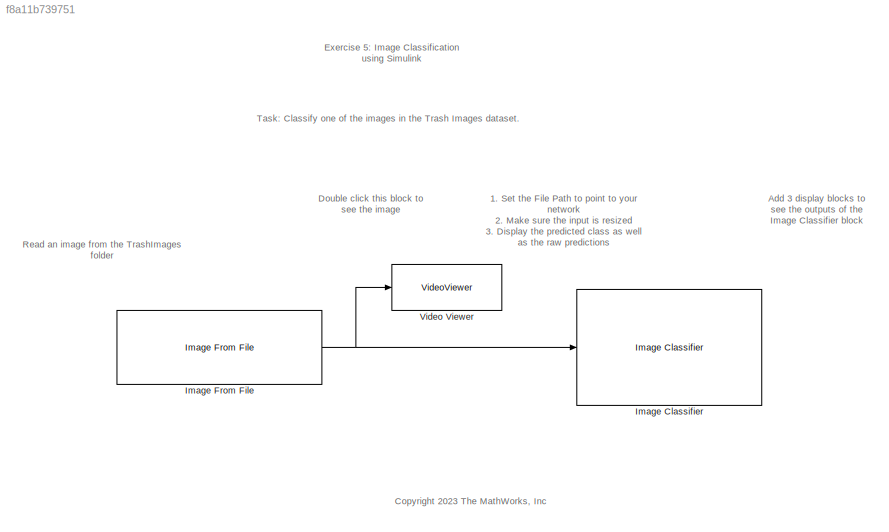
MODEL slx_f8a11b739751
KIND model
CONFIG AbsTol = auto
CONFIG EnableMultiTasking = off
CONFIG FixedStep = auto
CONFIG MaxStep = auto
CONFIG MinStep = auto
CONFIG RelTol = 1e-3
CONFIG SampleTimeConstraint = Unconstrained
CONFIG SolverName = VariableStepAuto
CONFIG StartTime = 0.0
CONFIG StopTime = 10.0
BLOCK [Reference] Image Classifier  REF=deeplib/Image Classifier
  SourceBlock = deeplib/Image Classifier
  SourceType = Image Classifier
BLOCK [Reference] Image From File  REF=visionsources/Image From File
  SourceBlock = visionsources/Image From File
  SourceType = Image From File
  Tag = vipblks_nd
BLOCK [VideoViewer] Video Viewer
  FigPos = [565.666666666667 592 418 304]
  ScopeSpecificationString = vipscopes.VideoViewerScopeCfg('CurrentConfiguration', extmgr.ConfigurationSet(extmgr.Configuration('Core','General UI',true),extmgr.Configuration('Core','Source UI',true),extmgr.Configuration('Sources','WiredSimulink',true),extmgr.Configuration('Visuals','Video',true),extmgr.Configuration('Tools','Image Navigation Tools',true),extmgr.Configuration('Tools','Image Tool',true),extmgr.Configuration('T...<+88ch>
ANNOTATION (root): 1. Set the File Path to point to your network 2. Make sure the input is resized 3. Display the predicted class as well as the raw predictions
ANNOTATION (root): Exercise 5: Image Classification using Simulink
ANNOTATION (root): Task: Classify one of the images in the Trash Images dataset.
ANNOTATION (root): Add 3 display blocks to see the outputs of the Image Classifier block
ANNOTATION (root): <copyright redacted>
ANNOTATION (root): Double click this block to see the image
ANNOTATION (root): Read an image from the TrashImages folder
NET Image From File:1 -> Image Classifier:1, Video Viewer:1
note: NET lines group one-source signal fan-out (src -> all destinations, sorted); 1:1 wires keep LINE
